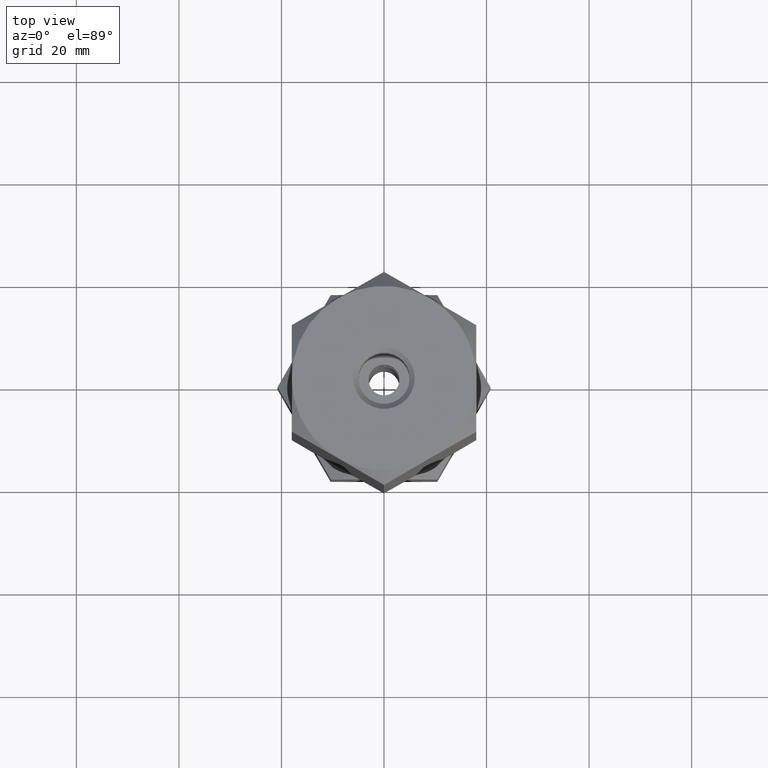
[diagram: clean part render]
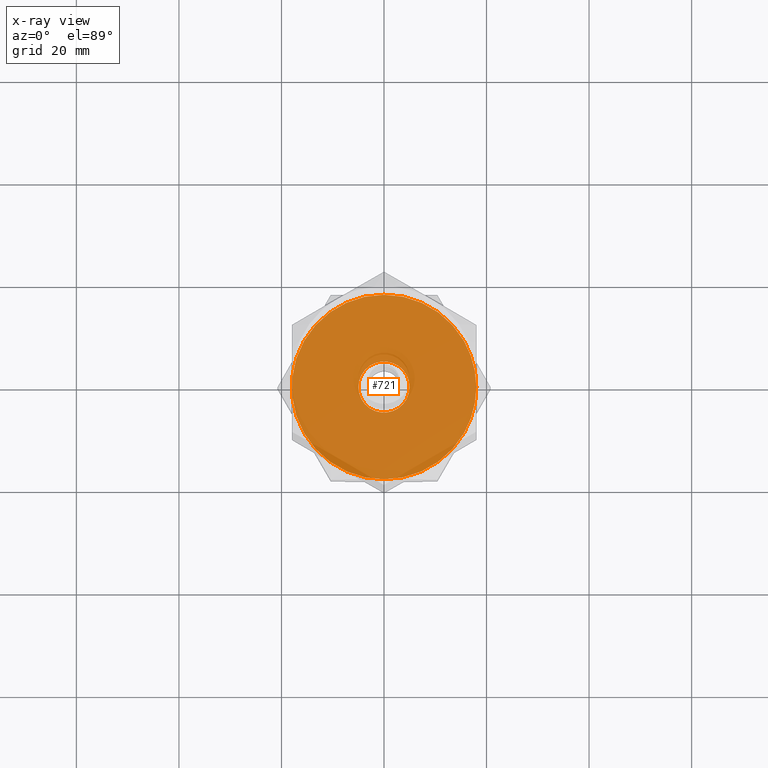
[diagram: x-ray — body ghosted, one internal face saturated and labeled with its STEP entity id]
A machine part, top view, then the same camera in x-ray: the body is ghosted and one INTERNAL B-rep face — a face not visible from any outside direction — is saturated and labeled: STEP entity #721.
In plain terms, the highlighted planar face has unit normal (0, 0, 1).
Its self-contained STEP definition (entity closure, byte-faithful):
#7 = PLANE ( 'NONE',  #53 ) ;
#47 = DIRECTION ( 'NONE',  ( 1.000000000000000000, 0.000000000000000000, 0.000000000000000000 ) ) ;
#49 = EDGE_LOOP ( 'NONE', ( #353, #1874, #1485, #1639, #469, #1111, #64 ) ) ;
#53 = AXIS2_PLACEMENT_3D ( 'NONE', #947, #1425, #164 ) ;
#64 = ORIENTED_EDGE ( 'NONE', *, *, #70, .T. ) ;
#70 = EDGE_CURVE ( 'NONE', #1494, #84, #118, .T. ) ;
#84 = VERTEX_POINT ( 'NONE', #1126 ) ;
#118 = CIRCLE ( 'NONE', #1271, 18.00000000000000000 ) ;
#119 = DIRECTION ( 'NONE',  ( 0.000000000000000000, 0.000000000000000000, 1.000000000000000000 ) ) ;
#147 = AXIS2_PLACEMENT_3D ( 'NONE', #1139, #657, #1289 ) ;
#162 = CARTESIAN_POINT ( 'NONE',  ( 18.00000000000000000, 0.000000000000000000, 30.00000000000000000 ) ) ;
#164 = DIRECTION ( 'NONE',  ( 1.000000000000000000, 0.000000000000000000, -0.000000000000000000 ) ) ;
#175 = CARTESIAN_POINT ( 'NONE',  ( 0.000000000000000000, 0.000000000000000000, 30.00000000000000000 ) ) ;
#207 = EDGE_CURVE ( 'NONE', #1064, #1494, #381, .T. ) ;
#234 = EDGE_CURVE ( 'NONE', #767, #884, #843, .T. ) ;
#254 = DIRECTION ( 'NONE',  ( 1.000000000000000000, 0.000000000000000000, 0.000000000000000000 ) ) ;
#353 = ORIENTED_EDGE ( 'NONE', *, *, #1565, .T. ) ;
#356 = DIRECTION ( 'NONE',  ( 0.000000000000000000, 0.000000000000000000, 1.000000000000000000 ) ) ;
#381 = CIRCLE ( 'NONE', #1921, 18.00000000000000000 ) ;
#384 = VERTEX_POINT ( 'NONE', #1100 ) ;
#400 = CARTESIAN_POINT ( 'NONE',  ( 0.000000000000000000, 18.00000000000000000, 30.00000000000000000 ) ) ;
#409 = EDGE_CURVE ( 'NONE', #384, #1032, #1063, .T. ) ;
#418 = AXIS2_PLACEMENT_3D ( 'NONE', #871, #356, #47 ) ;
#447 = AXIS2_PLACEMENT_3D ( 'NONE', #1305, #1467, #850 ) ;
#469 = ORIENTED_EDGE ( 'NONE', *, *, #838, .T. ) ;
#488 = CIRCLE ( 'NONE', #418, 18.00000000000000000 ) ;
#508 = CARTESIAN_POINT ( 'NONE',  ( 0.000000000000000000, 0.000000000000000000, 30.00000000000000000 ) ) ;
#517 = DIRECTION ( 'NONE',  ( 1.000000000000000000, 0.000000000000000000, 0.000000000000000000 ) ) ;
#569 = EDGE_LOOP ( 'NONE', ( #896, #1486 ) ) ;
#588 = CIRCLE ( 'NONE', #1178, 18.00000000000000000 ) ;
#596 = FACE_OUTER_BOUND ( 'NONE', #49, .T. ) ;
#657 = DIRECTION ( 'NONE',  ( 0.000000000000000000, 0.000000000000000000, -1.000000000000000000 ) ) ;
#666 = DIRECTION ( 'NONE',  ( 0.000000000000000000, 0.000000000000000000, 1.000000000000000000 ) ) ;
#673 = VERTEX_POINT ( 'NONE', #2036 ) ;
#704 = CARTESIAN_POINT ( 'NONE',  ( 15.58845726811989252, 9.000000000000003553, 30.00000000000000000 ) ) ;
#721 = ADVANCED_FACE ( 'NONE', ( #1298, #596 ), #7, .T. ) ;
#756 = DIRECTION ( 'NONE',  ( 0.000000000000000000, 0.000000000000000000, 1.000000000000000000 ) ) ;
#767 = VERTEX_POINT ( 'NONE', #704 ) ;
#803 = DIRECTION ( 'NONE',  ( 1.000000000000000000, 0.000000000000000000, 0.000000000000000000 ) ) ;
#838 = EDGE_CURVE ( 'NONE', #673, #1064, #488, .T. ) ;
#843 = CIRCLE ( 'NONE', #874, 18.00000000000000000 ) ;
#850 = DIRECTION ( 'NONE',  ( -1.000000000000000000, 0.000000000000000000, 0.000000000000000000 ) ) ;
#871 = CARTESIAN_POINT ( 'NONE',  ( 0.000000000000000000, 0.000000000000000000, 30.00000000000000000 ) ) ;
#874 = AXIS2_PLACEMENT_3D ( 'NONE', #1969, #1815, #254 ) ;
#884 = VERTEX_POINT ( 'NONE', #400 ) ;
#896 = ORIENTED_EDGE ( 'NONE', *, *, #1660, .T. ) ;
#947 = CARTESIAN_POINT ( 'NONE',  ( 0.000000000000000000, 0.000000000000000000, 30.00000000000000000 ) ) ;
#1032 = VERTEX_POINT ( 'NONE', #1411 ) ;
#1063 = CIRCLE ( 'NONE', #447, 5.000000000000000000 ) ;
#1064 = VERTEX_POINT ( 'NONE', #1442 ) ;
#1100 = CARTESIAN_POINT ( 'NONE',  ( 5.000000000000000000, 6.123233995736766282E-16, 30.00000000000000000 ) ) ;
#1111 = ORIENTED_EDGE ( 'NONE', *, *, #207, .T. ) ;
#1126 = CARTESIAN_POINT ( 'NONE',  ( 15.58845726811989429, -9.000000000000001776, 30.00000000000000000 ) ) ;
#1131 = AXIS2_PLACEMENT_3D ( 'NONE', #1688, #756, #1391 ) ;
#1139 = CARTESIAN_POINT ( 'NONE',  ( 0.000000000000000000, 0.000000000000000000, 30.00000000000000000 ) ) ;
#1147 = EDGE_CURVE ( 'NONE', #884, #673, #588, .T. ) ;
#1178 = AXIS2_PLACEMENT_3D ( 'NONE', #1915, #666, #517 ) ;
#1190 = DIRECTION ( 'NONE',  ( 1.000000000000000000, 0.000000000000000000, 0.000000000000000000 ) ) ;
#1209 = CARTESIAN_POINT ( 'NONE',  ( 0.000000000000000000, 0.000000000000000000, 30.00000000000000000 ) ) ;
#1211 = EDGE_CURVE ( 'NONE', #1476, #767, #1636, .T. ) ;
#1230 = CARTESIAN_POINT ( 'NONE',  ( 3.004629197474318851E-15, -18.00000000000000000, 30.00000000000000000 ) ) ;
#1271 = AXIS2_PLACEMENT_3D ( 'NONE', #508, #1444, #1903 ) ;
#1289 = DIRECTION ( 'NONE',  ( -1.000000000000000000, 0.000000000000000000, 0.000000000000000000 ) ) ;
#1298 = FACE_BOUND ( 'NONE', #569, .T. ) ;
#1305 = CARTESIAN_POINT ( 'NONE',  ( 0.000000000000000000, 0.000000000000000000, 30.00000000000000000 ) ) ;
#1391 = DIRECTION ( 'NONE',  ( 1.000000000000000000, 0.000000000000000000, 0.000000000000000000 ) ) ;
#1411 = CARTESIAN_POINT ( 'NONE',  ( -5.000000000000000000, 0.000000000000000000, 30.00000000000000000 ) ) ;
#1425 = DIRECTION ( 'NONE',  ( 0.000000000000000000, 0.000000000000000000, 1.000000000000000000 ) ) ;
#1442 = CARTESIAN_POINT ( 'NONE',  ( -15.58845726811989607, -9.000000000000003553, 30.00000000000000000 ) ) ;
#1444 = DIRECTION ( 'NONE',  ( 0.000000000000000000, 0.000000000000000000, 1.000000000000000000 ) ) ;
#1467 = DIRECTION ( 'NONE',  ( 0.000000000000000000, 0.000000000000000000, -1.000000000000000000 ) ) ;
#1476 = VERTEX_POINT ( 'NONE', #162 ) ;
#1485 = ORIENTED_EDGE ( 'NONE', *, *, #234, .T. ) ;
#1486 = ORIENTED_EDGE ( 'NONE', *, *, #409, .T. ) ;
#1494 = VERTEX_POINT ( 'NONE', #1230 ) ;
#1552 = DIRECTION ( 'NONE',  ( 0.000000000000000000, 0.000000000000000000, 1.000000000000000000 ) ) ;
#1565 = EDGE_CURVE ( 'NONE', #84, #1476, #2015, .T. ) ;
#1636 = CIRCLE ( 'NONE', #1667, 18.00000000000000000 ) ;
#1639 = ORIENTED_EDGE ( 'NONE', *, *, #1147, .T. ) ;
#1660 = EDGE_CURVE ( 'NONE', #1032, #384, #1787, .T. ) ;
#1667 = AXIS2_PLACEMENT_3D ( 'NONE', #175, #1552, #803 ) ;
#1688 = CARTESIAN_POINT ( 'NONE',  ( 0.000000000000000000, 0.000000000000000000, 30.00000000000000000 ) ) ;
#1787 = CIRCLE ( 'NONE', #147, 5.000000000000000000 ) ;
#1815 = DIRECTION ( 'NONE',  ( 0.000000000000000000, 0.000000000000000000, 1.000000000000000000 ) ) ;
#1874 = ORIENTED_EDGE ( 'NONE', *, *, #1211, .T. ) ;
#1903 = DIRECTION ( 'NONE',  ( 1.000000000000000000, 0.000000000000000000, 0.000000000000000000 ) ) ;
#1915 = CARTESIAN_POINT ( 'NONE',  ( 0.000000000000000000, 0.000000000000000000, 30.00000000000000000 ) ) ;
#1921 = AXIS2_PLACEMENT_3D ( 'NONE', #1209, #119, #1190 ) ;
#1969 = CARTESIAN_POINT ( 'NONE',  ( 0.000000000000000000, 0.000000000000000000, 30.00000000000000000 ) ) ;
#2015 = CIRCLE ( 'NONE', #1131, 18.00000000000000000 ) ;
#2036 = CARTESIAN_POINT ( 'NONE',  ( -15.58845726811989607, 8.999999999999996447, 30.00000000000000000 ) ) ;